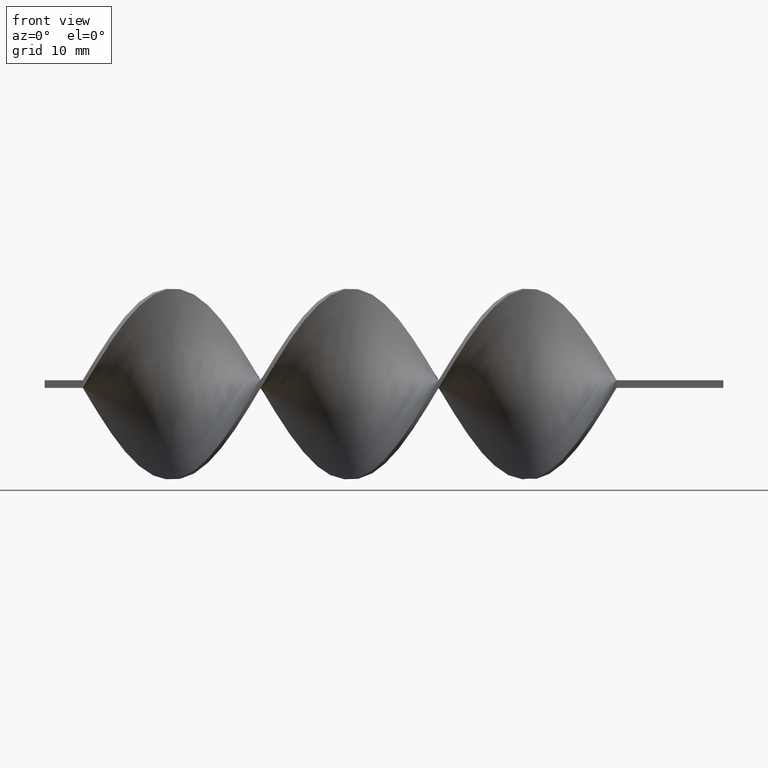
[diagram: clean part render]
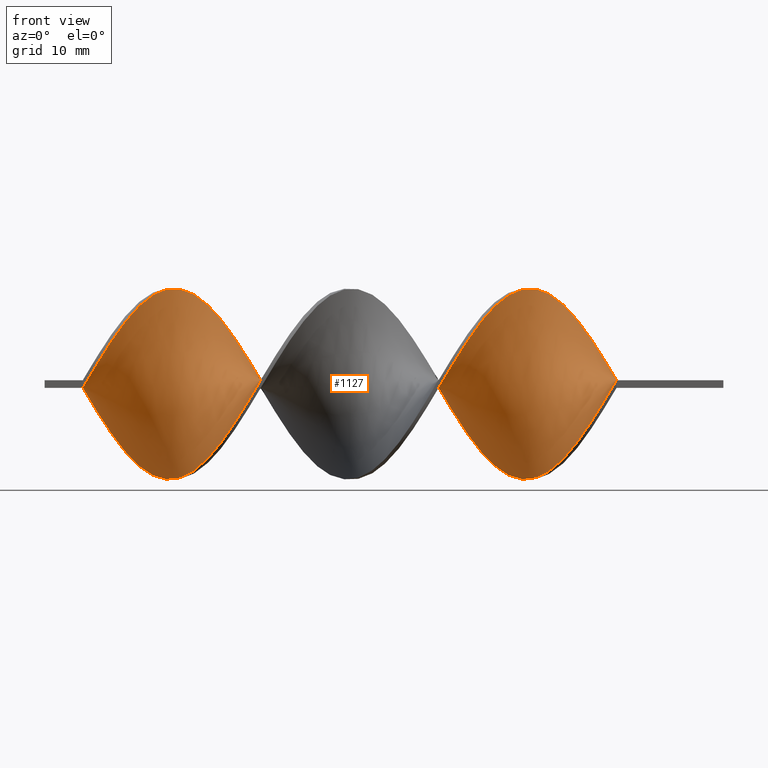
[diagram: same view with one face highlighted and labeled with its STEP entity id]
A machine part, front view. The second image highlights one B-rep face of the part: STEP entity #1127.
In plain terms, the highlighted face is a freeform B-spline surface patch.
Its self-contained STEP definition (entity closure, byte-faithful):
#8 = CARTESIAN_POINT ( 'NONE',  ( -23.87179487179487580, 2.524380470717862757, 12.34645007188563959 ) ) ;
#15 = CARTESIAN_POINT ( 'NONE',  ( -66.05128205128204399, 9.024823023018365475, 8.663288602095489566 ) ) ;
#22 = CARTESIAN_POINT ( 'NONE',  ( -78.61538461538461320, -9.687945681259160224, 7.914777853924392481 ) ) ;
#26 = CARTESIAN_POINT ( 'NONE',  ( -19.38461538461537970, -9.687945681259163777, -7.914777853924387152 ) ) ;
#27 = CARTESIAN_POINT ( 'NONE',  ( -42.71794871794871540, 9.687945681259162001, 7.914777853924385376 ) ) ;
#28 = CARTESIAN_POINT ( 'NONE',  ( -68.74358974358973740, 5.405725462660112335, 11.38356088229227048 ) ) ;
#30 = CARTESIAN_POINT ( 'NONE',  ( -69.64102564102563520, -4.900069209374406931, -11.51040059004641591 ) ) ;
#42 = CARTESIAN_POINT ( 'NONE',  ( -61.56410256410256920, 12.43928900838886875, 2.017774790278256791 ) ) ;
#53 = CARTESIAN_POINT ( 'NONE',  ( -52.58974358974358410, -5.405725462660106118, 11.38356088229227225 ) ) ;
#54 = CARTESIAN_POINT ( 'NONE',  ( -16.69230769230769340, -11.95215010832773217, -3.994174999484634281 ) ) ;
#56 = CARTESIAN_POINT ( 'NONE',  ( -24.76923076923076650, -2.003062940240569301, -12.34859258609801458 ) ) ;
#61 = CARTESIAN_POINT ( 'NONE',  ( -40.92307692307691980, -10.83583873464324299, -6.251767663373710704 ) ) ;
#63 = CARTESIAN_POINT ( 'NONE',  ( -77.71794871794872961, 7.972909339725120503, -9.759100511780301801 ) ) ;
#68 = CARTESIAN_POINT ( 'NONE',  ( -53.48717948717948900, -6.689317401192618640, 10.57133069703628614 ) ) ;
#70 = CARTESIAN_POINT ( 'NONE',  ( -63.35897435897435770, 11.59494076297487375, 4.936058634336738749 ) ) ;
#75 = CARTESIAN_POINT ( 'NONE',  ( -57.97435897435897090, 11.95215010832772684, -3.994174999484640498 ) ) ;
#78 = CARTESIAN_POINT ( 'NONE',  ( -81.30769230769233502, 11.59494076297487197, -4.936058634336743189 ) ) ;
#84 = CARTESIAN_POINT ( 'NONE',  ( -67.84615384615385381, -7.512301267086279211, -10.00326595030512777 ) ) ;
#85 = CARTESIAN_POINT ( 'NONE',  ( -33.74358974358974450, -11.30056190668700822, 5.366311637720503569 ) ) ;
#88 = CARTESIAN_POINT ( 'NONE',  ( -30.15384615384614975, 6.689317401192616863, -10.57133069703628436 ) ) ;
#93 = CARTESIAN_POINT ( 'NONE',  ( -40.02564102564102200, -11.59494076297487730, -4.936058634336734308 ) ) ;
#94 = CARTESIAN_POINT ( 'NONE',  ( -58.87179487179486870, 12.25643054996942638, -2.505974894881457526 ) ) ;
#96 = CARTESIAN_POINT ( 'NONE',  ( -26.56410256410255855, 1.010354066142507001, -12.46912926635333640 ) ) ;
#101 = CARTESIAN_POINT ( 'NONE',  ( -42.71794871794872250, -9.024823023018370804, -8.663288602095487789 ) ) ;
#109 = CARTESIAN_POINT ( 'NONE',  ( -65.15384615384614619, -10.64897370504629137, -6.738448275956367972 ) ) ;
#110 = CARTESIAN_POINT ( 'NONE',  ( -73.23076923076922640, 1.010354066142507001, -12.46912926635333640 ) ) ;
#117 = CARTESIAN_POINT ( 'NONE',  ( -34.64102564102564230, -11.95215010832773039, 3.994174999484638722 ) ) ;
#120 = CARTESIAN_POINT ( 'NONE',  ( -45.41025641025640880, 6.297684876700521350, 10.91542446871784122 ) ) ;
#124 = B_SPLINE_CURVE_WITH_KNOTS ( 'NONE', 3,
 ( #1076, #456, #1447, #320 ),
 .UNSPECIFIED., .F., .F.,
 ( 4, 4 ),
 ( 0.000000000000000000, 1.000000000000000000 ),
 .UNSPECIFIED. ) ;
#130 = CARTESIAN_POINT ( 'NONE',  ( -82.20512820512820440, -12.25643054996943171, 2.505974894881450421 ) ) ;
#133 = CARTESIAN_POINT ( 'NONE',  ( -19.38461538461538325, 9.024823023018365475, 8.663288602095489566 ) ) ;
#147 = CARTESIAN_POINT ( 'NONE',  ( -13.99999999999999467, -12.50000000000000178, 0.5000000000000000000 ) ) ;
#154 = CARTESIAN_POINT ( 'NONE',  ( -56.17948717948717530, -10.07673670631160867, 7.567476692410687100 ) ) ;
#161 = CARTESIAN_POINT ( 'NONE',  ( -48.10256410256409509, 2.003062940240569745, 12.34859258609801280 ) ) ;
#163 = CARTESIAN_POINT ( 'NONE',  ( -65.15384615384614619, 10.07673670631160512, 7.567476692410683548 ) ) ;
#168 = CARTESIAN_POINT ( 'NONE',  ( -50.79487179487178139, -2.524380470717860536, 12.34645007188564136 ) ) ;
#175 = EDGE_CURVE ( 'NONE', #1342, #534, #124, .T. ) ;
#181 = CARTESIAN_POINT ( 'NONE',  ( -59.76923076923077360, 12.56071099161113303, -1.017774790278264119 ) ) ;
#184 = FACE_OUTER_BOUND ( 'NONE', #1585, .T. ) ;
#189 = CARTESIAN_POINT ( 'NONE',  ( -53.48717948717948900, 7.512301267086271217, -10.00326595030513133 ) ) ;
#192 = CARTESIAN_POINT ( 'NONE',  ( -66.05128205128204399, 9.024823023018365475, 8.663288602095489566 ) ) ;
#197 = ORIENTED_EDGE ( 'NONE', *, *, #175, .F. ) ;
#200 = CARTESIAN_POINT ( 'NONE',  ( -66.94871794871794179, -8.726917657472039735, -9.091107431892412549 ) ) ;
#201 = CARTESIAN_POINT ( 'NONE',  ( -43.61538461538461320, -7.972909339725131161, -9.759100511780294696 ) ) ;
#205 = CARTESIAN_POINT ( 'NONE',  ( -40.92307692307691980, 11.30056190668700822, 5.366311637720500904 ) ) ;
#210 = CARTESIAN_POINT ( 'NONE',  ( -75.92307692307690559, 5.405725462660110558, -11.38356088229227048 ) ) ;
#211 = CARTESIAN_POINT ( 'NONE',  ( -22.07692307692308376, 5.405725462660113223, 11.38356088229226870 ) ) ;
#216 = CARTESIAN_POINT ( 'NONE',  ( -17.58974358974358765, 10.83583873464323943, 6.251767663373711592 ) ) ;
#218 = CARTESIAN_POINT ( 'NONE',  ( -83.10256410256410220, 12.43928900838886875, -2.017774790278262564 ) ) ;
#225 = CARTESIAN_POINT ( 'NONE',  ( -25.66666666666666785, -0.5036723384328426478, 12.59180846082103855 ) ) ;
#232 = CARTESIAN_POINT ( 'NONE',  ( -33.74358974358974450, -11.30056190668700822, 5.366311637720503569 ) ) ;
#234 = CARTESIAN_POINT ( 'NONE',  ( -79.51282051282051100, -10.64897370504628960, 6.738448275956369748 ) ) ;
#238 = CARTESIAN_POINT ( 'NONE',  ( -26.56410256410256210, -2.003062940240564860, 12.34859258609801458 ) ) ;
#248 = CARTESIAN_POINT ( 'NONE',  ( -76.82051282051281760, -7.512301267086276546, 10.00326595030512955 ) ) ;
#259 = CARTESIAN_POINT ( 'NONE',  ( -44.51282051282050389, 7.512301267086275658, 10.00326595030512777 ) ) ;
#263 = CARTESIAN_POINT ( 'NONE',  ( -73.23076923076924061, -2.003062940240564860, 12.34859258609801458 ) ) ;
#271 = CARTESIAN_POINT ( 'NONE',  ( -20.28205128205128105, -8.726917657472039735, -9.091107431892410773 ) ) ;
#276 =( BOUNDED_CURVE ( )  B_SPLINE_CURVE ( 2, ( #989, #968, #720, #474, #216, #1352, #1113, #1465, #337, #624, #728, #8, #1217, #225, #238, #1606, #1234, #492, #1483, #977, #1361, #883, #232, #117, #1498, #1615, #890, #1492, #860, #93, #374, #594, #101, #1091, #603, #656, #645, #1143, #1012, #1128, #400, #1262, #794, #1023, #1517, #1008, #1159, #392, #384, #672, #522, #787, #1506, #42, #1280, #543, #538, #163, #15, #1153, #528, #28, #1037, #899, #514, #1535, #263, #915, #924, #416, #248, #1257, #22, #1270, #1392, #641, #130, #764, #780 ),
 .UNSPECIFIED., .F., .T. ) 
 B_SPLINE_CURVE_WITH_KNOTS ( ( 3, 2, 2, 2, 2, 2, 2, 2, 2, 2, 2, 2, 2, 2, 2, 2, 2, 2, 2, 2, 2, 2, 2, 2, 2, 2, 2, 2, 2, 2, 2, 2, 2, 2, 2, 2, 2, 2, 2, 3 ),
 ( 0.000000000000000000, 0.01923076923076923184, 0.03846153846153846367, 0.05769230769230768857, 0.07692307692307692735, 0.09615384615384615918, 0.1153846153846153771, 0.1346153846153846090, 0.1538461538461538547, 0.1730769230769230449, 0.1923076923076923184, 0.2115384615384615363, 0.2307692307692307543, 0.2500000000000000000, 0.2692307692307692180, 0.2884615384615384359, 0.3076923076923077094, 0.3269230769230769273, 0.3461538461538460898, 0.3653846153846153633, 0.3846153846153846367, 0.4038461538461539102, 0.4230769230769230727, 0.4423076923076922906, 0.4615384615384615086, 0.4807692307692307820, 0.5000000000000000000, 0.5192307692307692735, 0.5384615384615384359, 0.5576923076923077094, 0.5769230769230768718, 0.5961538461538461453, 0.6153846153846154188, 0.6346153846153845812, 0.6538461538461538547, 0.6730769230769230171, 0.6923076923076921796, 0.7115384615384615641, 0.7307692307692307265, 0.7500000000000000000 ),
 .UNSPECIFIED. ) 
 CURVE ( )  GEOMETRIC_REPRESENTATION_ITEM ( )  RATIONAL_B_SPLINE_CURVE ( ( 1.000000000000000000, 0.9927088740980539727, 1.000000000000000000, 0.9927088740980539727, 1.000000000000000000, 0.9927088740980539727, 1.000000000000000000, 0.9927088740980539727, 1.000000000000000000, 0.9927088740980539727, 1.000000000000000000, 0.9927088740980539727, 1.000000000000000000, 0.9927088740980539727, 1.000000000000000000, 0.9927088740980539727, 1.000000000000000000, 0.9927088740980539727, 1.000000000000000000, 0.9927088740980539727, 1.000000000000000000, 0.9927088740980539727, 1.000000000000000000, 0.9927088740980539727, 1.000000000000000000, 0.9927088740980539727, 1.000000000000000000, 0.9927088740980539727, 1.000000000000000000, 0.9927088740980539727, 1.000000000000000000, 0.9927088740980539727, 1.000000000000000000, 0.9927088740980539727, 1.000000000000000000, 0.9927088740980539727, 1.000000000000000000, 0.9927088740980539727, 1.000000000000000000, 0.9927088740980539727, 1.000000000000000000, 0.9927088740980539727, 1.000000000000000000, 0.9927088740980539727, 1.000000000000000000, 0.9927088740980539727, 1.000000000000000000, 0.9927088740980539727, 1.000000000000000000, 0.9927088740980539727, 1.000000000000000000, 0.9927088740980539727, 1.000000000000000000, 0.9927088740980539727, 1.000000000000000000, 0.9927088740980539727, 1.000000000000000000, 0.9927088740980539727, 1.000000000000000000, 0.9927088740980539727, 1.000000000000000000, 0.9927088740980539727, 1.000000000000000000, 0.9927088740980539727, 1.000000000000000000, 0.9927088740980539727, 1.000000000000000000, 0.9927088740980539727, 1.000000000000000000, 0.9927088740980539727, 1.000000000000000000, 0.9927088740980539727, 1.000000000000000000, 0.9927088740980539727, 1.000000000000000000, 0.9927088740980539727, 1.000000000000000000, 0.9927088740980539727, 1.000000000000000000 ) ) 
 REPRESENTATION_ITEM ( '' )  );
#282 = CARTESIAN_POINT ( 'NONE',  ( -45.41025641025640880, 6.297684876700521350, 10.91542446871784122 ) ) ;
#288 = ORIENTED_EDGE ( 'NONE', *, *, #1401, .F. ) ;
#290 = CARTESIAN_POINT ( 'NONE',  ( -26.56410256410255855, 1.010354066142507001, -12.46912926635333640 ) ) ;
#295 = CARTESIAN_POINT ( 'NONE',  ( -37.33333333333332860, -12.50000000000000178, -0.4999999999999985012 ) ) ;
#297 = CARTESIAN_POINT ( 'NONE',  ( -27.46153846153845990, 2.524380470717861424, -12.34645007188564136 ) ) ;
#301 = CARTESIAN_POINT ( 'NONE',  ( -62.46153846153845990, -12.25643054996943171, -2.505974894881445980 ) ) ;
#302 = CARTESIAN_POINT ( 'NONE',  ( -54.38461538461538680, 8.726917657472025525, -9.091107431892417878 ) ) ;
#313 = CARTESIAN_POINT ( 'NONE',  ( -31.05128205128205821, -8.726917657472034406, 9.091107431892414326 ) ) ;
#320 = CARTESIAN_POINT ( 'NONE',  ( -84.00000000000000000, -12.50000000000000178, -0.4999999999999985012 ) ) ;
#321 = CARTESIAN_POINT ( 'NONE',  ( -73.23076923076924061, -2.003062940240564860, 12.34859258609801458 ) ) ;
#329 = CARTESIAN_POINT ( 'NONE',  ( -69.64102564102563520, -4.900069209374406931, -11.51040059004641591 ) ) ;
#330 = CARTESIAN_POINT ( 'NONE',  ( -32.84615384615384670, -10.64897370504628960, 6.738448275956369748 ) ) ;
#337 = CARTESIAN_POINT ( 'NONE',  ( -21.17948717948717885, 6.689317401192619528, 10.57133069703628259 ) ) ;
#342 =( BOUNDED_SURFACE ( )  B_SPLINE_SURFACE ( 1, 2, ( 
 ( #580, #459, #841, #54, #559, #1588, #1505, #271, #414, #1531, #1403, #506, #1510, #912, #290, #297, #1170, #560, #550, #1550, #1058, #814, #1406, #1559, #1567, #1544, #1293, #990, #1144, #997, #354, #655, #27, #399, #913, #282, #664, #1034, #161, #668, #791, #168, #1163, #548, #894, #496, #546, #154, #661, #356, #788, #1616, #606, #1493, #1224, #500, #891, #109, #1607, #800, #521, #1602, #30, #1024, #487, #781, #979, #1519, #1227, #1534, #1542, #63, #1068, #707, #1327, #78, #1203, #461, #1451 ),
 ( #491, #958, #718, #951, #1518, #401, #133, #1298, #810, #211, #949, #693, #1323, #1439, #956, #1209, #839, #1418, #446, #313, #563, #330, #85, #825, #1189, #701, #295, #1200, #1175, #932, #61, #436, #573, #201, #1056, #1556, #713, #941, #1456, #1428, #1449, #585, #722, #1085, #189, #302, #829, #1563, #1335, #75, #94, #181, #704, #596, #1310, #70, #579, #1581, #192, #1181, #468, #1077, #1066, #1316, #1573, #458, #321, #962, #848, #1093, #1593, #1226, #486, #234, #376, #1484, #494, #476, #1101 ) ),
 .UNSPECIFIED., .F., .F., .F. ) 
 B_SPLINE_SURFACE_WITH_KNOTS ( ( 2, 2 ),
 ( 3, 2, 2, 2, 2, 2, 2, 2, 2, 2, 2, 2, 2, 2, 2, 2, 2, 2, 2, 2, 2, 2, 2, 2, 2, 2, 2, 2, 2, 2, 2, 2, 2, 2, 2, 2, 2, 2, 2, 3 ),
 ( 0.000000000000000000, 1.000000000000000000 ),
 ( 0.000000000000000000, 0.01923076923076923184, 0.03846153846153846367, 0.05769230769230769551, 0.07692307692307692735, 0.09615384615384615918, 0.1153846153846153910, 0.1346153846153846090, 0.1538461538461538547, 0.1730769230769230727, 0.1923076923076923184, 0.2115384615384615363, 0.2307692307692307820, 0.2500000000000000000, 0.2692307692307692180, 0.2884615384615384359, 0.3076923076923077094, 0.3269230769230769273, 0.3461538461538461453, 0.3653846153846153633, 0.3846153846153846367, 0.4038461538461538547, 0.4230769230769230727, 0.4423076923076922906, 0.4615384615384615641, 0.4807692307692307820, 0.5000000000000000000, 0.5192307692307692735, 0.5384615384615384359, 0.5576923076923077094, 0.5769230769230768718, 0.5961538461538461453, 0.6153846153846154188, 0.6346153846153845812, 0.6538461538461538547, 0.6730769230769231282, 0.6923076923076922906, 0.7115384615384615641, 0.7307692307692307265, 0.7500000000000000000 ),
 .UNSPECIFIED. ) 
 GEOMETRIC_REPRESENTATION_ITEM ( )  RATIONAL_B_SPLINE_SURFACE ( (
 ( 1.000000000000000000, 0.9927088740980539727, 1.000000000000000000, 0.9927088740980539727, 1.000000000000000000, 0.9927088740980539727, 1.000000000000000000, 0.9927088740980539727, 1.000000000000000000, 0.9927088740980539727, 1.000000000000000000, 0.9927088740980539727, 1.000000000000000000, 0.9927088740980539727, 1.000000000000000000, 0.9927088740980539727, 1.000000000000000000, 0.9927088740980539727, 1.000000000000000000, 0.9927088740980539727, 1.000000000000000000, 0.9927088740980539727, 1.000000000000000000, 0.9927088740980539727, 1.000000000000000000, 0.9927088740980539727, 1.000000000000000000, 0.9927088740980539727, 1.000000000000000000, 0.9927088740980539727, 1.000000000000000000, 0.9927088740980539727, 1.000000000000000000, 0.9927088740980539727, 1.000000000000000000, 0.9927088740980539727, 1.000000000000000000, 0.9927088740980539727, 1.000000000000000000, 0.9927088740980539727, 1.000000000000000000, 0.9927088740980539727, 1.000000000000000000, 0.9927088740980539727, 1.000000000000000000, 0.9927088740980539727, 1.000000000000000000, 0.9927088740980539727, 1.000000000000000000, 0.9927088740980539727, 1.000000000000000000, 0.9927088740980539727, 1.000000000000000000, 0.9927088740980539727, 1.000000000000000000, 0.9927088740980539727, 1.000000000000000000, 0.9927088740980539727, 1.000000000000000000, 0.9927088740980539727, 1.000000000000000000, 0.9927088740980539727, 1.000000000000000000, 0.9927088740980539727, 1.000000000000000000, 0.9927088740980539727, 1.000000000000000000, 0.9927088740980539727, 1.000000000000000000, 0.9927088740980539727, 1.000000000000000000, 0.9927088740980539727, 1.000000000000000000, 0.9927088740980539727, 1.000000000000000000, 0.9927088740980539727, 1.000000000000000000, 0.9927088740980539727, 1.000000000000000000),
 ( 1.000000000000000000, 0.9927088740980539727, 1.000000000000000000, 0.9927088740980539727, 1.000000000000000000, 0.9927088740980539727, 1.000000000000000000, 0.9927088740980539727, 1.000000000000000000, 0.9927088740980539727, 1.000000000000000000, 0.9927088740980539727, 1.000000000000000000, 0.9927088740980539727, 1.000000000000000000, 0.9927088740980539727, 1.000000000000000000, 0.9927088740980539727, 1.000000000000000000, 0.9927088740980539727, 1.000000000000000000, 0.9927088740980539727, 1.000000000000000000, 0.9927088740980539727, 1.000000000000000000, 0.9927088740980539727, 1.000000000000000000, 0.9927088740980539727, 1.000000000000000000, 0.9927088740980539727, 1.000000000000000000, 0.9927088740980539727, 1.000000000000000000, 0.9927088740980539727, 1.000000000000000000, 0.9927088740980539727, 1.000000000000000000, 0.9927088740980539727, 1.000000000000000000, 0.9927088740980539727, 1.000000000000000000, 0.9927088740980539727, 1.000000000000000000, 0.9927088740980539727, 1.000000000000000000, 0.9927088740980539727, 1.000000000000000000, 0.9927088740980539727, 1.000000000000000000, 0.9927088740980539727, 1.000000000000000000, 0.9927088740980539727, 1.000000000000000000, 0.9927088740980539727, 1.000000000000000000, 0.9927088740980539727, 1.000000000000000000, 0.9927088740980539727, 1.000000000000000000, 0.9927088740980539727, 1.000000000000000000, 0.9927088740980539727, 1.000000000000000000, 0.9927088740980539727, 1.000000000000000000, 0.9927088740980539727, 1.000000000000000000, 0.9927088740980539727, 1.000000000000000000, 0.9927088740980539727, 1.000000000000000000, 0.9927088740980539727, 1.000000000000000000, 0.9927088740980539727, 1.000000000000000000, 0.9927088740980539727, 1.000000000000000000, 0.9927088740980539727, 1.000000000000000000) ) ) 
 REPRESENTATION_ITEM ( '' )  SURFACE ( )  );
#347 = CARTESIAN_POINT ( 'NONE',  ( -13.99999999999999467, -12.50000000000000178, 0.5000000000000000000 ) ) ;
#354 = CARTESIAN_POINT ( 'NONE',  ( -40.92307692307691980, 11.30056190668700822, 5.366311637720500904 ) ) ;
#355 = CARTESIAN_POINT ( 'NONE',  ( -84.00000000000000000, 12.49999999999999822, -0.5000000000000015543 ) ) ;
#356 = CARTESIAN_POINT ( 'NONE',  ( -57.97435897435897090, -11.59494076297487553, 4.936058634336744966 ) ) ;
#372 = ORIENTED_EDGE ( 'NONE', *, *, #440, .F. ) ;
#374 = CARTESIAN_POINT ( 'NONE',  ( -40.92307692307691980, -10.83583873464324299, -6.251767663373710704 ) ) ;
#376 = CARTESIAN_POINT ( 'NONE',  ( -80.41025641025640880, -11.30056190668700822, 5.366311637720503569 ) ) ;
#384 = CARTESIAN_POINT ( 'NONE',  ( -57.07692307692307310, 11.30056190668700289, -5.366311637720509786 ) ) ;
#388 = CARTESIAN_POINT ( 'NONE',  ( -43.61538461538461320, 8.726917657472037959, 9.091107431892408997 ) ) ;
#392 = CARTESIAN_POINT ( 'NONE',  ( -56.17948717948717530, 10.64897370504628604, -6.738448275956370637 ) ) ;
#398 = CARTESIAN_POINT ( 'NONE',  ( -21.17948717948717530, -7.512301267086279211, -10.00326595030512777 ) ) ;
#399 = CARTESIAN_POINT ( 'NONE',  ( -43.61538461538461320, 8.726917657472037959, 9.091107431892407220 ) ) ;
#400 = CARTESIAN_POINT ( 'NONE',  ( -49.89743589743589069, 2.003062940240554202, -12.34859258609801635 ) ) ;
#401 = CARTESIAN_POINT ( 'NONE',  ( -18.48717948717948545, 10.07673670631160689, 7.567476692410683548 ) ) ;
#414 = CARTESIAN_POINT ( 'NONE',  ( -21.17948717948717530, -7.512301267086279211, -10.00326595030512777 ) ) ;
#416 = CARTESIAN_POINT ( 'NONE',  ( -75.92307692307691980, -6.297684876700517798, 10.91542446871784655 ) ) ;
#420 = CARTESIAN_POINT ( 'NONE',  ( -64.25641025641024839, -11.30056190668700999, -5.366311637720501793 ) ) ;
#435 = CARTESIAN_POINT ( 'NONE',  ( -59.76923076923076650, -12.43928900838887230, 2.017774790278263897 ) ) ;
#436 = CARTESIAN_POINT ( 'NONE',  ( -41.82051282051281760, -10.07673670631161222, -7.567476692410682659 ) ) ;
#440 = EDGE_CURVE ( 'NONE', #1458, #1342, #1468, .T. ) ;
#446 = CARTESIAN_POINT ( 'NONE',  ( -30.15384615384615330, -7.512301267086276546, 10.00326595030512955 ) ) ;
#456 = CARTESIAN_POINT ( 'NONE',  ( -84.00000000000000000, 4.166666666666666075, -0.5000000000000005551 ) ) ;
#458 = CARTESIAN_POINT ( 'NONE',  ( -72.33333333333332860, -0.5036723384328426478, 12.59180846082103855 ) ) ;
#459 = CARTESIAN_POINT ( 'NONE',  ( -14.89743589743589247, -12.56071099161113658, -1.017774790278256791 ) ) ;
#461 = CARTESIAN_POINT ( 'NONE',  ( -83.10256410256410220, 12.43928900838886875, -2.017774790278262564 ) ) ;
#468 = CARTESIAN_POINT ( 'NONE',  ( -67.84615384615385381, 6.689317401192619528, 10.57133069703628259 ) ) ;
#474 = CARTESIAN_POINT ( 'NONE',  ( -16.69230769230769340, 11.59494076297487375, 4.936058634336738749 ) ) ;
#475 = CARTESIAN_POINT ( 'NONE',  ( -75.02564102564102200, 3.965052966688984437, -11.86500547708895326 ) ) ;
#476 = CARTESIAN_POINT ( 'NONE',  ( -83.10256410256410220, -12.56071099161113658, 1.017774790278262564 ) ) ;
#486 = CARTESIAN_POINT ( 'NONE',  ( -78.61538461538461320, -9.687945681259160224, 7.914777853924392481 ) ) ;
#487 = CARTESIAN_POINT ( 'NONE',  ( -71.43589743589743080, -2.003062940240569301, -12.34859258609801458 ) ) ;
#491 = CARTESIAN_POINT ( 'NONE',  ( -13.99999999999999822, 12.49999999999999822, 0.5000000000000000000 ) ) ;
#492 = CARTESIAN_POINT ( 'NONE',  ( -29.25641025641025905, -6.297684876700517798, 10.91542446871784655 ) ) ;
#494 = CARTESIAN_POINT ( 'NONE',  ( -82.20512820512820440, -12.25643054996943171, 2.505974894881450421 ) ) ;
#495 = CARTESIAN_POINT ( 'NONE',  ( -22.97435897435896734, -4.900069209374406931, -11.51040059004641591 ) ) ;
#496 = CARTESIAN_POINT ( 'NONE',  ( -54.38461538461537970, -7.972909339725118727, 9.759100511780305354 ) ) ;
#500 = CARTESIAN_POINT ( 'NONE',  ( -63.35897435897434349, -11.95215010832773217, -3.994174999484634281 ) ) ;
#506 = CARTESIAN_POINT ( 'NONE',  ( -23.87179487179487225, -3.502453542048291624, -12.10537671137499238 ) ) ;
#514 = CARTESIAN_POINT ( 'NONE',  ( -71.43589743589743080, 1.010354066142511442, 12.46912926635333640 ) ) ;
#521 = CARTESIAN_POINT ( 'NONE',  ( -67.84615384615385381, -7.512301267086279211, -10.00326595030512777 ) ) ;
#522 = CARTESIAN_POINT ( 'NONE',  ( -58.87179487179486870, 12.25643054996942638, -2.505974894881457526 ) ) ;
#527 = CARTESIAN_POINT ( 'NONE',  ( -20.28205128205128105, -8.726917657472039735, -9.091107431892412549 ) ) ;
#528 = CARTESIAN_POINT ( 'NONE',  ( -67.84615384615385381, 6.689317401192619528, 10.57133069703628259 ) ) ;
#534 = VERTEX_POINT ( 'NONE', #826 ) ;
#537 = CARTESIAN_POINT ( 'NONE',  ( -14.89743589743589247, -12.56071099161113480, -1.017774790278256569 ) ) ;
#538 = CARTESIAN_POINT ( 'NONE',  ( -64.25641025641024839, 10.83583873464323943, 6.251767663373711592 ) ) ;
#543 = CARTESIAN_POINT ( 'NONE',  ( -63.35897435897436480, 11.59494076297487375, 4.936058634336738749 ) ) ;
#546 = CARTESIAN_POINT ( 'NONE',  ( -55.28205128205128460, -9.024823023018361923, 8.663288602095494895 ) ) ;
#548 = CARTESIAN_POINT ( 'NONE',  ( -52.58974358974357699, -5.405725462660107006, 11.38356088229227048 ) ) ;
#550 = CARTESIAN_POINT ( 'NONE',  ( -30.15384615384614975, 6.689317401192616863, -10.57133069703628436 ) ) ;
#558 = CARTESIAN_POINT ( 'NONE',  ( -55.28205128205128460, -9.024823023018361923, 8.663288602095494895 ) ) ;
#559 = CARTESIAN_POINT ( 'NONE',  ( -17.58974358974358410, -11.30056190668700999, -5.366311637720501793 ) ) ;
#560 = CARTESIAN_POINT ( 'NONE',  ( -29.25641025641025550, 5.405725462660111447, -11.38356088229226870 ) ) ;
#563 = CARTESIAN_POINT ( 'NONE',  ( -31.94871794871794535, -9.687945681259160224, 7.914777853924392481 ) ) ;
#572 = CARTESIAN_POINT ( 'NONE',  ( -47.20512820512820440, 3.502453542048287183, 12.10537671137499238 ) ) ;
#573 = CARTESIAN_POINT ( 'NONE',  ( -42.71794871794872250, -9.024823023018370804, -8.663288602095487789 ) ) ;
#579 = CARTESIAN_POINT ( 'NONE',  ( -64.25641025641024839, 10.83583873464323943, 6.251767663373711592 ) ) ;
#580 = CARTESIAN_POINT ( 'NONE',  ( -13.99999999999999467, -12.50000000000000178, 0.5000000000000000000 ) ) ;
#585 = CARTESIAN_POINT ( 'NONE',  ( -50.79487179487178850, 3.502453542048282742, -12.10537671137499238 ) ) ;
#587 = CARTESIAN_POINT ( 'NONE',  ( -37.33333333333332860, 12.49999999999999822, -0.5000000000000015543 ) ) ;
#594 = CARTESIAN_POINT ( 'NONE',  ( -41.82051282051281760, -10.07673670631161045, -7.567476692410682659 ) ) ;
#595 = CARTESIAN_POINT ( 'NONE',  ( -78.61538461538461320, 9.024823023018361923, -8.663288602095494895 ) ) ;
#596 = CARTESIAN_POINT ( 'NONE',  ( -61.56410256410256920, 12.43928900838886875, 2.017774790278256791 ) ) ;
#599 = CARTESIAN_POINT ( 'NONE',  ( -33.74358974358973740, 10.83583873464323766, -6.251767663373713368 ) ) ;
#603 = CARTESIAN_POINT ( 'NONE',  ( -44.51282051282051100, -6.689317401192623080, -10.57133069703628259 ) ) ;
#606 = CARTESIAN_POINT ( 'NONE',  ( -60.66666666666665719, -12.50000000000000178, 0.5000000000000000000 ) ) ;
#607 = CARTESIAN_POINT ( 'NONE',  ( -79.51282051282051100, 10.07673670631160334, -7.567476692410685324 ) ) ;
#613 = CARTESIAN_POINT ( 'NONE',  ( -23.87179487179487225, -3.502453542048291624, -12.10537671137499238 ) ) ;
#620 = CARTESIAN_POINT ( 'NONE',  ( -31.05128205128205110, 7.972909339725121391, -9.759100511780301801 ) ) ;
#624 = CARTESIAN_POINT ( 'NONE',  ( -22.07692307692308020, 5.405725462660112335, 11.38356088229227048 ) ) ;
#632 = CARTESIAN_POINT ( 'NONE',  ( -13.99999999999999822, 12.49999999999999822, 0.5000000000000000000 ) ) ;
#641 = CARTESIAN_POINT ( 'NONE',  ( -81.30769230769232081, -11.95215010832773039, 3.994174999484638722 ) ) ;
#644 = CARTESIAN_POINT ( 'NONE',  ( -15.79487179487178850, -12.25643054996943171, -2.505974894881445980 ) ) ;
#645 = CARTESIAN_POINT ( 'NONE',  ( -46.30769230769230660, -3.965052966688992875, -11.86500547708895148 ) ) ;
#655 = CARTESIAN_POINT ( 'NONE',  ( -41.82051282051281760, 10.64897370504628960, 6.738448275956367084 ) ) ;
#656 = CARTESIAN_POINT ( 'NONE',  ( -45.41025641025640880, -5.405725462660122105, -11.38356088229226515 ) ) ;
#661 = CARTESIAN_POINT ( 'NONE',  ( -57.07692307692306599, -10.83583873464323766, 6.251767663373719586 ) ) ;
#664 = CARTESIAN_POINT ( 'NONE',  ( -46.30769230769229949, 4.900069209374405155, 11.51040059004641591 ) ) ;
#668 = CARTESIAN_POINT ( 'NONE',  ( -49.00000000000000711, 0.5036723384328417596, 12.59180846082103855 ) ) ;
#672 = CARTESIAN_POINT ( 'NONE',  ( -57.97435897435897090, 11.95215010832772684, -3.994174999484640498 ) ) ;
#693 = CARTESIAN_POINT ( 'NONE',  ( -23.87179487179487580, 2.524380470717862757, 12.34645007188564136 ) ) ;
#700 = CARTESIAN_POINT ( 'NONE',  ( -56.17948717948717530, -10.07673670631160689, 7.567476692410687100 ) ) ;
#701 = CARTESIAN_POINT ( 'NONE',  ( -36.43589743589743790, -12.56071099161113658, 1.017774790278262564 ) ) ;
#704 = CARTESIAN_POINT ( 'NONE',  ( -60.66666666666666430, 12.49999999999999822, 0.5000000000000000000 ) ) ;
#707 = CARTESIAN_POINT ( 'NONE',  ( -79.51282051282051100, 10.07673670631160512, -7.567476692410685324 ) ) ;
#713 = CARTESIAN_POINT ( 'NONE',  ( -46.30769230769230660, -3.965052966688992875, -11.86500547708895148 ) ) ;
#715 = CARTESIAN_POINT ( 'NONE',  ( -41.82051282051281760, 10.64897370504628960, 6.738448275956366196 ) ) ;
#718 = CARTESIAN_POINT ( 'NONE',  ( -15.79487179487179205, 12.01711488568186859, 3.476916712307497548 ) ) ;
#720 = CARTESIAN_POINT ( 'NONE',  ( -15.79487179487179205, 12.01711488568186859, 3.476916712307497548 ) ) ;
#721 = CARTESIAN_POINT ( 'NONE',  ( -76.82051282051281760, 6.689317401192616863, -10.57133069703628436 ) ) ;
#722 = CARTESIAN_POINT ( 'NONE',  ( -51.69230769230769340, 4.900069209374400714, -11.51040059004641769 ) ) ;
#728 = CARTESIAN_POINT ( 'NONE',  ( -22.97435897435897090, 3.965052966688987546, 11.86500547708895148 ) ) ;
#732 = CARTESIAN_POINT ( 'NONE',  ( -22.07692307692307310, -6.297684876700517798, -10.91542446871784655 ) ) ;
#739 = CARTESIAN_POINT ( 'NONE',  ( -70.53846153846153300, -3.502453542048291624, -12.10537671137499238 ) ) ;
#764 = CARTESIAN_POINT ( 'NONE',  ( -83.10256410256410220, -12.56071099161113480, 1.017774790278262564 ) ) ;
#766 = CARTESIAN_POINT ( 'NONE',  ( -46.30769230769229949, 4.900069209374405155, 11.51040059004641591 ) ) ;
#780 = CARTESIAN_POINT ( 'NONE',  ( -84.00000000000000000, -12.50000000000000178, -0.4999999999999985012 ) ) ;
#781 = CARTESIAN_POINT ( 'NONE',  ( -72.33333333333332860, -0.5036723384328442021, -12.59180846082103855 ) ) ;
#787 = CARTESIAN_POINT ( 'NONE',  ( -59.76923076923076650, 12.56071099161113125, -1.017774790278263897 ) ) ;
#788 = CARTESIAN_POINT ( 'NONE',  ( -58.87179487179486159, -12.01711488568187036, 3.476916712307509094 ) ) ;
#791 = CARTESIAN_POINT ( 'NONE',  ( -49.89743589743589069, -1.010354066142503893, 12.46912926635333818 ) ) ;
#794 = CARTESIAN_POINT ( 'NONE',  ( -51.69230769230769340, 4.900069209374400714, -11.51040059004641769 ) ) ;
#800 = CARTESIAN_POINT ( 'NONE',  ( -66.94871794871792758, -8.726917657472039735, -9.091107431892410773 ) ) ;
#810 = CARTESIAN_POINT ( 'NONE',  ( -21.17948717948717885, 6.689317401192619528, 10.57133069703628259 ) ) ;
#814 = CARTESIAN_POINT ( 'NONE',  ( -32.84615384615384670, 10.07673670631160512, -7.567476692410685324 ) ) ;
#825 = CARTESIAN_POINT ( 'NONE',  ( -34.64102564102564230, -11.95215010832773039, 3.994174999484638722 ) ) ;
#826 = CARTESIAN_POINT ( 'NONE',  ( -84.00000000000000000, -12.50000000000000178, -0.4999999999999985012 ) ) ;
#829 = CARTESIAN_POINT ( 'NONE',  ( -55.28205128205128460, 9.687945681259156672, -7.914777853924392481 ) ) ;
#839 = CARTESIAN_POINT ( 'NONE',  ( -28.35897435897435770, -4.900069209374403378, 11.51040059004641769 ) ) ;
#841 = CARTESIAN_POINT ( 'NONE',  ( -15.79487179487178850, -12.25643054996943171, -2.505974894881445980 ) ) ;
#847 = CARTESIAN_POINT ( 'NONE',  ( -72.33333333333332860, -0.5036723384328442021, -12.59180846082103855 ) ) ;
#848 = CARTESIAN_POINT ( 'NONE',  ( -75.02564102564102200, -4.900069209374403378, 11.51040059004641769 ) ) ;
#860 = CARTESIAN_POINT ( 'NONE',  ( -39.12820512820512420, -12.01711488568187569, -3.476916712307494439 ) ) ;
#861 = CARTESIAN_POINT ( 'NONE',  ( -80.41025641025640880, 10.83583873464323766, -6.251767663373713368 ) ) ;
#877 = CARTESIAN_POINT ( 'NONE',  ( -36.43589743589743080, 12.43928900838886875, -2.017774790278262564 ) ) ;
#883 = CARTESIAN_POINT ( 'NONE',  ( -32.84615384615384670, -10.64897370504628960, 6.738448275956368860 ) ) ;
#890 = CARTESIAN_POINT ( 'NONE',  ( -37.33333333333332860, -12.50000000000000178, -0.4999999999999985012 ) ) ;
#891 = CARTESIAN_POINT ( 'NONE',  ( -64.25641025641024839, -11.30056190668700999, -5.366311637720501793 ) ) ;
#894 = CARTESIAN_POINT ( 'NONE',  ( -53.48717948717948900, -6.689317401192618640, 10.57133069703628614 ) ) ;
#899 = CARTESIAN_POINT ( 'NONE',  ( -70.53846153846153300, 2.524380470717862757, 12.34645007188563959 ) ) ;
#905 = CARTESIAN_POINT ( 'NONE',  ( -17.58974358974358410, -11.30056190668700999, -5.366311637720501793 ) ) ;
#912 = CARTESIAN_POINT ( 'NONE',  ( -25.66666666666666785, -0.5036723384328442021, -12.59180846082103855 ) ) ;
#913 = CARTESIAN_POINT ( 'NONE',  ( -44.51282051282050389, 7.512301267086275658, 10.00326595030512777 ) ) ;
#915 = CARTESIAN_POINT ( 'NONE',  ( -74.12820512820510999, -3.502453542048290291, 12.10537671137499238 ) ) ;
#924 = CARTESIAN_POINT ( 'NONE',  ( -75.02564102564102200, -4.900069209374403378, 11.51040059004641769 ) ) ;
#932 = CARTESIAN_POINT ( 'NONE',  ( -40.02564102564102200, -11.59494076297487730, -4.936058634336734308 ) ) ;
#934 = CARTESIAN_POINT ( 'NONE',  ( -39.12820512820512420, 12.25643054996942816, 2.505974894881441539 ) ) ;
#940 = CARTESIAN_POINT ( 'NONE',  ( -60.66666666666665719, -12.50000000000000178, 0.5000000000000000000 ) ) ;
#941 = CARTESIAN_POINT ( 'NONE',  ( -47.20512820512820440, -2.524380470717865421, -12.34645007188564136 ) ) ;
#949 = CARTESIAN_POINT ( 'NONE',  ( -22.97435897435897090, 3.965052966688987546, 11.86500547708895148 ) ) ;
#951 = CARTESIAN_POINT ( 'NONE',  ( -16.69230769230769695, 11.59494076297487375, 4.936058634336738749 ) ) ;
#956 = CARTESIAN_POINT ( 'NONE',  ( -26.56410256410256210, -2.003062940240564860, 12.34859258609801458 ) ) ;
#958 = CARTESIAN_POINT ( 'NONE',  ( -14.89743589743589602, 12.43928900838886875, 2.017774790278256791 ) ) ;
#961 = CARTESIAN_POINT ( 'NONE',  ( -68.74358974358973740, -6.297684876700517798, -10.91542446871784655 ) ) ;
#962 = CARTESIAN_POINT ( 'NONE',  ( -74.12820512820512420, -3.502453542048290291, 12.10537671137499238 ) ) ;
#968 = CARTESIAN_POINT ( 'NONE',  ( -14.89743589743589602, 12.43928900838886875, 2.017774790278256791 ) ) ;
#977 = CARTESIAN_POINT ( 'NONE',  ( -31.05128205128205465, -8.726917657472034406, 9.091107431892416102 ) ) ;
#979 = CARTESIAN_POINT ( 'NONE',  ( -73.23076923076922640, 1.010354066142507001, -12.46912926635333640 ) ) ;
#988 = CARTESIAN_POINT ( 'NONE',  ( -35.53846153846153300, 12.01711488568186859, -3.476916712307501989 ) ) ;
#989 = CARTESIAN_POINT ( 'NONE',  ( -13.99999999999999822, 12.49999999999999822, 0.5000000000000000000 ) ) ;
#990 = CARTESIAN_POINT ( 'NONE',  ( -38.23076923076921929, 12.56071099161113303, 1.017774790278253905 ) ) ;
#997 = CARTESIAN_POINT ( 'NONE',  ( -40.02564102564101489, 11.95215010832772862, 3.994174999484630284 ) ) ;
#998 = CARTESIAN_POINT ( 'NONE',  ( -13.99999999999999822, 12.49999999999999822, 0.5000000000000000000 ) ) ;
#1008 = CARTESIAN_POINT ( 'NONE',  ( -54.38461538461538680, 8.726917657472025525, -9.091107431892417878 ) ) ;
#1012 = CARTESIAN_POINT ( 'NONE',  ( -48.10256410256410220, -1.010354066142519658, -12.46912926635333818 ) ) ;
#1023 = CARTESIAN_POINT ( 'NONE',  ( -52.58974358974359120, 6.297684876700509804, -10.91542446871784655 ) ) ;
#1024 = CARTESIAN_POINT ( 'NONE',  ( -70.53846153846153300, -3.502453542048291624, -12.10537671137499238 ) ) ;
#1033 = CARTESIAN_POINT ( 'NONE',  ( -57.07692307692306599, -10.83583873464323766, 6.251767663373719586 ) ) ;
#1034 = CARTESIAN_POINT ( 'NONE',  ( -47.20512820512820440, 3.502453542048287627, 12.10537671137499238 ) ) ;
#1037 = CARTESIAN_POINT ( 'NONE',  ( -69.64102564102564941, 3.965052966688987546, 11.86500547708895148 ) ) ;
#1042 = CARTESIAN_POINT ( 'NONE',  ( -57.97435897435897090, -11.59494076297487553, 4.936058634336744966 ) ) ;
#1049 = CARTESIAN_POINT ( 'NONE',  ( -58.87179487179486159, -12.01711488568187036, 3.476916712307509094 ) ) ;
#1056 = CARTESIAN_POINT ( 'NONE',  ( -44.51282051282051100, -6.689317401192623080, -10.57133069703628259 ) ) ;
#1058 = CARTESIAN_POINT ( 'NONE',  ( -31.94871794871793824, 9.024823023018361923, -8.663288602095494895 ) ) ;
#1065 = CARTESIAN_POINT ( 'NONE',  ( -63.35897435897435059, -11.95215010832773217, -3.994174999484634281 ) ) ;
#1066 = CARTESIAN_POINT ( 'NONE',  ( -69.64102564102564941, 3.965052966688987546, 11.86500547708895148 ) ) ;
#1068 = CARTESIAN_POINT ( 'NONE',  ( -78.61538461538461320, 9.024823023018361923, -8.663288602095494895 ) ) ;
#1076 = CARTESIAN_POINT ( 'NONE',  ( -84.00000000000000000, 12.49999999999999822, -0.5000000000000015543 ) ) ;
#1077 = CARTESIAN_POINT ( 'NONE',  ( -68.74358974358973740, 5.405725462660113223, 11.38356088229226870 ) ) ;
#1085 = CARTESIAN_POINT ( 'NONE',  ( -52.58974358974358410, 6.297684876700509804, -10.91542446871784477 ) ) ;
#1091 = CARTESIAN_POINT ( 'NONE',  ( -43.61538461538461320, -7.972909339725132050, -9.759100511780294696 ) ) ;
#1093 = CARTESIAN_POINT ( 'NONE',  ( -75.92307692307693401, -6.297684876700518686, 10.91542446871784477 ) ) ;
#1101 = CARTESIAN_POINT ( 'NONE',  ( -84.00000000000000000, -12.50000000000000178, -0.4999999999999985012 ) ) ;
#1108 = CARTESIAN_POINT ( 'NONE',  ( -34.64102564102564230, 11.59494076297487197, -4.936058634336743189 ) ) ;
#1113 = CARTESIAN_POINT ( 'NONE',  ( -19.38461538461538325, 9.024823023018365475, 8.663288602095489566 ) ) ;
#1125 = CARTESIAN_POINT ( 'NONE',  ( -42.71794871794871540, 9.687945681259162001, 7.914777853924385376 ) ) ;
#1127 = ADVANCED_FACE ( 'NONE', ( #184 ), #342, .T. ) ;
#1128 = CARTESIAN_POINT ( 'NONE',  ( -49.00000000000000000, 0.5036723384328372077, -12.59180846082103855 ) ) ;
#1132 = CARTESIAN_POINT ( 'NONE',  ( -16.69230769230768985, -11.95215010832773217, -3.994174999484634281 ) ) ;
#1143 = CARTESIAN_POINT ( 'NONE',  ( -47.20512820512820440, -2.524380470717865421, -12.34645007188563959 ) ) ;
#1144 = CARTESIAN_POINT ( 'NONE',  ( -39.12820512820512420, 12.25643054996942816, 2.505974894881441539 ) ) ;
#1153 = CARTESIAN_POINT ( 'NONE',  ( -66.94871794871795601, 7.972909339725126721, 9.759100511780298248 ) ) ;
#1159 = CARTESIAN_POINT ( 'NONE',  ( -55.28205128205128460, 9.687945681259156672, -7.914777853924392481 ) ) ;
#1163 = CARTESIAN_POINT ( 'NONE',  ( -51.69230769230769340, -3.965052966688988434, 11.86500547708895326 ) ) ;
#1168 = VECTOR ( 'NONE', #1241, 1000.000000000000000 ) ;
#1170 = CARTESIAN_POINT ( 'NONE',  ( -28.35897435897435059, 3.965052966688984437, -11.86500547708895326 ) ) ;
#1175 = CARTESIAN_POINT ( 'NONE',  ( -39.12820512820512420, -12.01711488568187569, -3.476916712307494439 ) ) ;
#1181 = CARTESIAN_POINT ( 'NONE',  ( -66.94871794871794179, 7.972909339725125832, 9.759100511780298248 ) ) ;
#1189 = CARTESIAN_POINT ( 'NONE',  ( -35.53846153846153300, -12.25643054996943171, 2.505974894881450421 ) ) ;
#1200 = CARTESIAN_POINT ( 'NONE',  ( -38.23076923076922640, -12.43928900838887230, -2.017774790278253683 ) ) ;
#1203 = CARTESIAN_POINT ( 'NONE',  ( -82.20512820512820440, 12.01711488568186859, -3.476916712307501989 ) ) ;
#1208 = CARTESIAN_POINT ( 'NONE',  ( -77.71794871794874382, 7.972909339725121391, -9.759100511780301801 ) ) ;
#1209 = CARTESIAN_POINT ( 'NONE',  ( -27.46153846153846345, -3.502453542048290291, 12.10537671137499238 ) ) ;
#1212 = CARTESIAN_POINT ( 'NONE',  ( -25.66666666666666785, -0.5036723384328442021, -12.59180846082103855 ) ) ;
#1217 = CARTESIAN_POINT ( 'NONE',  ( -24.76923076923076650, 1.010354066142511442, 12.46912926635333640 ) ) ;
#1218 = CARTESIAN_POINT ( 'NONE',  ( -84.00000000000000000, 12.49999999999999822, -0.5000000000000015543 ) ) ;
#1224 = CARTESIAN_POINT ( 'NONE',  ( -62.46153846153845990, -12.25643054996943171, -2.505974894881445980 ) ) ;
#1225 = CARTESIAN_POINT ( 'NONE',  ( -71.43589743589743080, -2.003062940240569301, -12.34859258609801458 ) ) ;
#1226 = CARTESIAN_POINT ( 'NONE',  ( -77.71794871794872961, -8.726917657472034406, 9.091107431892414326 ) ) ;
#1227 = CARTESIAN_POINT ( 'NONE',  ( -75.02564102564102200, 3.965052966688984437, -11.86500547708895326 ) ) ;
#1229 = CARTESIAN_POINT ( 'NONE',  ( -28.35897435897435059, 3.965052966688984437, -11.86500547708895326 ) ) ;
#1234 = CARTESIAN_POINT ( 'NONE',  ( -28.35897435897435770, -4.900069209374403378, 11.51040059004641769 ) ) ;
#1241 = DIRECTION ( 'NONE',  ( 1.387778780781445676E-16, -1.000000000000000000, 0.000000000000000000 ) ) ;
#1257 = CARTESIAN_POINT ( 'NONE',  ( -77.71794871794874382, -8.726917657472034406, 9.091107431892416102 ) ) ;
#1262 = CARTESIAN_POINT ( 'NONE',  ( -50.79487179487178850, 3.502453542048282742, -12.10537671137499238 ) ) ;
#1270 = CARTESIAN_POINT ( 'NONE',  ( -79.51282051282051100, -10.64897370504628960, 6.738448275956368860 ) ) ;
#1280 = CARTESIAN_POINT ( 'NONE',  ( -62.46153846153845990, 12.01711488568186859, 3.476916712307497548 ) ) ;
#1284 = CARTESIAN_POINT ( 'NONE',  ( -49.89743589743589069, -1.010354066142503893, 12.46912926635333818 ) ) ;
#1293 = CARTESIAN_POINT ( 'NONE',  ( -37.33333333333332860, 12.49999999999999822, -0.5000000000000015543 ) ) ;
#1298 = CARTESIAN_POINT ( 'NONE',  ( -20.28205128205128460, 7.972909339725125832, 9.759100511780298248 ) ) ;
#1309 = CARTESIAN_POINT ( 'NONE',  ( -51.69230769230769340, -3.965052966688988434, 11.86500547708895326 ) ) ;
#1310 = CARTESIAN_POINT ( 'NONE',  ( -62.46153846153845990, 12.01711488568186859, 3.476916712307497548 ) ) ;
#1315 = CARTESIAN_POINT ( 'NONE',  ( -65.15384615384614619, -10.64897370504629137, -6.738448275956367084 ) ) ;
#1316 = CARTESIAN_POINT ( 'NONE',  ( -70.53846153846153300, 2.524380470717862757, 12.34645007188564136 ) ) ;
#1323 = CARTESIAN_POINT ( 'NONE',  ( -24.76923076923076650, 1.010354066142511442, 12.46912926635333640 ) ) ;
#1326 = CARTESIAN_POINT ( 'NONE',  ( -40.02564102564101489, 11.95215010832772862, 3.994174999484630284 ) ) ;
#1327 = CARTESIAN_POINT ( 'NONE',  ( -80.41025641025640880, 10.83583873464323766, -6.251767663373713368 ) ) ;
#1334 = CARTESIAN_POINT ( 'NONE',  ( -74.12820512820510999, 2.524380470717861424, -12.34645007188563959 ) ) ;
#1335 = CARTESIAN_POINT ( 'NONE',  ( -57.07692307692307310, 11.30056190668700289, -5.366311637720509786 ) ) ;
#1342 = VERTEX_POINT ( 'NONE', #355 ) ;
#1352 = CARTESIAN_POINT ( 'NONE',  ( -18.48717948717948545, 10.07673670631160512, 7.567476692410683548 ) ) ;
#1357 = CARTESIAN_POINT ( 'NONE',  ( -29.25641025641025550, 5.405725462660110558, -11.38356088229227048 ) ) ;
#1361 = CARTESIAN_POINT ( 'NONE',  ( -31.94871794871794535, -9.687945681259160224, 7.914777853924392481 ) ) ;
#1370 = LINE ( 'NONE', #998, #1168 ) ;
#1385 = CARTESIAN_POINT ( 'NONE',  ( -18.48717948717948545, -10.64897370504629137, -6.738448275956367084 ) ) ;
#1392 = CARTESIAN_POINT ( 'NONE',  ( -80.41025641025640880, -11.30056190668700822, 5.366311637720503569 ) ) ;
#1395 = CARTESIAN_POINT ( 'NONE',  ( -54.38461538461537970, -7.972909339725119615, 9.759100511780305354 ) ) ;
#1401 = EDGE_CURVE ( 'NONE', #1612, #1458, #1370, .T. ) ;
#1403 = CARTESIAN_POINT ( 'NONE',  ( -22.97435897435896734, -4.900069209374406931, -11.51040059004641591 ) ) ;
#1406 = CARTESIAN_POINT ( 'NONE',  ( -33.74358974358973740, 10.83583873464323766, -6.251767663373713368 ) ) ;
#1418 = CARTESIAN_POINT ( 'NONE',  ( -29.25641025641025905, -6.297684876700518686, 10.91542446871784477 ) ) ;
#1420 = CARTESIAN_POINT ( 'NONE',  ( -27.46153846153845990, 2.524380470717861424, -12.34645007188563959 ) ) ;
#1427 = CARTESIAN_POINT ( 'NONE',  ( -48.10256410256409509, 2.003062940240569745, 12.34859258609801280 ) ) ;
#1428 = CARTESIAN_POINT ( 'NONE',  ( -49.00000000000000711, 0.5036723384328373188, -12.59180846082103855 ) ) ;
#1438 = CARTESIAN_POINT ( 'NONE',  ( -82.20512820512820440, 12.01711488568186859, -3.476916712307501989 ) ) ;
#1439 = CARTESIAN_POINT ( 'NONE',  ( -25.66666666666666785, -0.5036723384328426478, 12.59180846082103855 ) ) ;
#1447 = CARTESIAN_POINT ( 'NONE',  ( -84.00000000000000000, -4.166666666666669627, -0.4999999999999994449 ) ) ;
#1449 = CARTESIAN_POINT ( 'NONE',  ( -49.89743589743589069, 2.003062940240554202, -12.34859258609801635 ) ) ;
#1451 = CARTESIAN_POINT ( 'NONE',  ( -84.00000000000000000, 12.49999999999999822, -0.5000000000000015543 ) ) ;
#1455 = CARTESIAN_POINT ( 'NONE',  ( -66.05128205128204399, -9.687945681259163777, -7.914777853924387152 ) ) ;
#1456 = CARTESIAN_POINT ( 'NONE',  ( -48.10256410256410220, -1.010354066142519658, -12.46912926635333818 ) ) ;
#1458 = VERTEX_POINT ( 'NONE', #347 ) ;
#1459 = CARTESIAN_POINT ( 'NONE',  ( -31.94871794871793824, 9.024823023018361923, -8.663288602095494895 ) ) ;
#1465 = CARTESIAN_POINT ( 'NONE',  ( -20.28205128205128460, 7.972909339725126721, 9.759100511780298248 ) ) ;
#1468 =( BOUNDED_CURVE ( )  B_SPLINE_CURVE ( 2, ( #147, #537, #644, #1132, #905, #1385, #26, #527, #398, #732, #495, #613, #56, #1212, #96, #1420, #1229, #1357, #88, #620, #1459, #1611, #599, #1108, #988, #877, #587, #1549, #934, #1326, #205, #715, #1125, #388, #259, #120, #766, #572, #1427, #1555, #1284, #1540, #1309, #53, #68, #1395, #558, #700, #1033, #1042, #1049, #435, #940, #1530, #301, #1065, #420, #1315, #1455, #200, #84, #961, #329, #739, #1225, #847, #110, #1334, #475, #210, #721, #1208, #595, #607, #861, #1592, #1438, #218, #1218 ),
 .UNSPECIFIED., .F., .T. ) 
 B_SPLINE_CURVE_WITH_KNOTS ( ( 3, 2, 2, 2, 2, 2, 2, 2, 2, 2, 2, 2, 2, 2, 2, 2, 2, 2, 2, 2, 2, 2, 2, 2, 2, 2, 2, 2, 2, 2, 2, 2, 2, 2, 2, 2, 2, 2, 2, 3 ),
 ( 0.000000000000000000, 0.01923076923076923184, 0.03846153846153846367, 0.05769230769230768857, 0.07692307692307692735, 0.09615384615384615918, 0.1153846153846153771, 0.1346153846153846090, 0.1538461538461538547, 0.1730769230769230449, 0.1923076923076923184, 0.2115384615384615363, 0.2307692307692307543, 0.2500000000000000000, 0.2692307692307692180, 0.2884615384615384359, 0.3076923076923077094, 0.3269230769230769273, 0.3461538461538460898, 0.3653846153846153633, 0.3846153846153846367, 0.4038461538461539102, 0.4230769230769230727, 0.4423076923076922906, 0.4615384615384615086, 0.4807692307692307820, 0.5000000000000000000, 0.5192307692307692735, 0.5384615384615384359, 0.5576923076923077094, 0.5769230769230768718, 0.5961538461538461453, 0.6153846153846154188, 0.6346153846153845812, 0.6538461538461538547, 0.6730769230769230171, 0.6923076923076921796, 0.7115384615384615641, 0.7307692307692307265, 0.7500000000000000000 ),
 .UNSPECIFIED. ) 
 CURVE ( )  GEOMETRIC_REPRESENTATION_ITEM ( )  RATIONAL_B_SPLINE_CURVE ( ( 1.000000000000000000, 0.9927088740980539727, 1.000000000000000000, 0.9927088740980539727, 1.000000000000000000, 0.9927088740980539727, 1.000000000000000000, 0.9927088740980539727, 1.000000000000000000, 0.9927088740980539727, 1.000000000000000000, 0.9927088740980539727, 1.000000000000000000, 0.9927088740980539727, 1.000000000000000000, 0.9927088740980539727, 1.000000000000000000, 0.9927088740980539727, 1.000000000000000000, 0.9927088740980539727, 1.000000000000000000, 0.9927088740980539727, 1.000000000000000000, 0.9927088740980539727, 1.000000000000000000, 0.9927088740980539727, 1.000000000000000000, 0.9927088740980539727, 1.000000000000000000, 0.9927088740980539727, 1.000000000000000000, 0.9927088740980539727, 1.000000000000000000, 0.9927088740980539727, 1.000000000000000000, 0.9927088740980539727, 1.000000000000000000, 0.9927088740980539727, 1.000000000000000000, 0.9927088740980539727, 1.000000000000000000, 0.9927088740980539727, 1.000000000000000000, 0.9927088740980539727, 1.000000000000000000, 0.9927088740980539727, 1.000000000000000000, 0.9927088740980539727, 1.000000000000000000, 0.9927088740980539727, 1.000000000000000000, 0.9927088740980539727, 1.000000000000000000, 0.9927088740980539727, 1.000000000000000000, 0.9927088740980539727, 1.000000000000000000, 0.9927088740980539727, 1.000000000000000000, 0.9927088740980539727, 1.000000000000000000, 0.9927088740980539727, 1.000000000000000000, 0.9927088740980539727, 1.000000000000000000, 0.9927088740980539727, 1.000000000000000000, 0.9927088740980539727, 1.000000000000000000, 0.9927088740980539727, 1.000000000000000000, 0.9927088740980539727, 1.000000000000000000, 0.9927088740980539727, 1.000000000000000000, 0.9927088740980539727, 1.000000000000000000, 0.9927088740980539727, 1.000000000000000000 ) ) 
 REPRESENTATION_ITEM ( '' )  );
#1480 = EDGE_CURVE ( 'NONE', #1612, #534, #276, .T. ) ;
#1483 = CARTESIAN_POINT ( 'NONE',  ( -30.15384615384615330, -7.512301267086276546, 10.00326595030512955 ) ) ;
#1484 = CARTESIAN_POINT ( 'NONE',  ( -81.30769230769233502, -11.95215010832773039, 3.994174999484638722 ) ) ;
#1492 = CARTESIAN_POINT ( 'NONE',  ( -38.23076923076922640, -12.43928900838887230, -2.017774790278253683 ) ) ;
#1493 = CARTESIAN_POINT ( 'NONE',  ( -61.56410256410256920, -12.56071099161113658, -1.017774790278256791 ) ) ;
#1498 = CARTESIAN_POINT ( 'NONE',  ( -35.53846153846153300, -12.25643054996943171, 2.505974894881450421 ) ) ;
#1505 = CARTESIAN_POINT ( 'NONE',  ( -19.38461538461537970, -9.687945681259163777, -7.914777853924387152 ) ) ;
#1506 = CARTESIAN_POINT ( 'NONE',  ( -60.66666666666666430, 12.49999999999999822, 0.5000000000000000000 ) ) ;
#1510 = CARTESIAN_POINT ( 'NONE',  ( -24.76923076923076650, -2.003062940240569301, -12.34859258609801458 ) ) ;
#1517 = CARTESIAN_POINT ( 'NONE',  ( -53.48717948717948900, 7.512301267086271217, -10.00326595030513133 ) ) ;
#1518 = CARTESIAN_POINT ( 'NONE',  ( -17.58974358974358765, 10.83583873464323943, 6.251767663373711592 ) ) ;
#1519 = CARTESIAN_POINT ( 'NONE',  ( -74.12820512820512420, 2.524380470717861424, -12.34645007188564136 ) ) ;
#1530 = CARTESIAN_POINT ( 'NONE',  ( -61.56410256410256920, -12.56071099161113480, -1.017774790278256569 ) ) ;
#1531 = CARTESIAN_POINT ( 'NONE',  ( -22.07692307692307665, -6.297684876700518686, -10.91542446871784477 ) ) ;
#1534 = CARTESIAN_POINT ( 'NONE',  ( -75.92307692307691980, 5.405725462660111447, -11.38356088229226870 ) ) ;
#1535 = CARTESIAN_POINT ( 'NONE',  ( -72.33333333333332860, -0.5036723384328426478, 12.59180846082103855 ) ) ;
#1540 = CARTESIAN_POINT ( 'NONE',  ( -50.79487179487178139, -2.524380470717860536, 12.34645007188563959 ) ) ;
#1542 = CARTESIAN_POINT ( 'NONE',  ( -76.82051282051281760, 6.689317401192616863, -10.57133069703628436 ) ) ;
#1544 = CARTESIAN_POINT ( 'NONE',  ( -36.43589743589743080, 12.43928900838886875, -2.017774790278262564 ) ) ;
#1549 = CARTESIAN_POINT ( 'NONE',  ( -38.23076923076921929, 12.56071099161113125, 1.017774790278253905 ) ) ;
#1550 = CARTESIAN_POINT ( 'NONE',  ( -31.05128205128205465, 7.972909339725120503, -9.759100511780301801 ) ) ;
#1555 = CARTESIAN_POINT ( 'NONE',  ( -49.00000000000000000, 0.5036723384328417596, 12.59180846082103855 ) ) ;
#1556 = CARTESIAN_POINT ( 'NONE',  ( -45.41025641025640880, -5.405725462660122993, -11.38356088229226515 ) ) ;
#1559 = CARTESIAN_POINT ( 'NONE',  ( -34.64102564102564230, 11.59494076297487197, -4.936058634336743189 ) ) ;
#1563 = CARTESIAN_POINT ( 'NONE',  ( -56.17948717948717530, 10.64897370504628604, -6.738448275956371525 ) ) ;
#1567 = CARTESIAN_POINT ( 'NONE',  ( -35.53846153846153300, 12.01711488568186859, -3.476916712307501989 ) ) ;
#1573 = CARTESIAN_POINT ( 'NONE',  ( -71.43589743589743080, 1.010354066142511442, 12.46912926635333640 ) ) ;
#1574 = ORIENTED_EDGE ( 'NONE', *, *, #1480, .T. ) ;
#1581 = CARTESIAN_POINT ( 'NONE',  ( -65.15384615384614619, 10.07673670631160689, 7.567476692410683548 ) ) ;
#1585 = EDGE_LOOP ( 'NONE', ( #288, #1574, #197, #372 ) ) ;
#1588 = CARTESIAN_POINT ( 'NONE',  ( -18.48717948717948545, -10.64897370504629137, -6.738448275956367972 ) ) ;
#1592 = CARTESIAN_POINT ( 'NONE',  ( -81.30769230769232081, 11.59494076297487197, -4.936058634336743189 ) ) ;
#1593 = CARTESIAN_POINT ( 'NONE',  ( -76.82051282051281760, -7.512301267086276546, 10.00326595030512955 ) ) ;
#1602 = CARTESIAN_POINT ( 'NONE',  ( -68.74358974358973740, -6.297684876700518686, -10.91542446871784477 ) ) ;
#1606 = CARTESIAN_POINT ( 'NONE',  ( -27.46153846153846345, -3.502453542048290291, 12.10537671137499238 ) ) ;
#1607 = CARTESIAN_POINT ( 'NONE',  ( -66.05128205128204399, -9.687945681259163777, -7.914777853924387152 ) ) ;
#1611 = CARTESIAN_POINT ( 'NONE',  ( -32.84615384615384670, 10.07673670631160334, -7.567476692410685324 ) ) ;
#1612 = VERTEX_POINT ( 'NONE', #632 ) ;
#1615 = CARTESIAN_POINT ( 'NONE',  ( -36.43589743589743790, -12.56071099161113480, 1.017774790278262564 ) ) ;
#1616 = CARTESIAN_POINT ( 'NONE',  ( -59.76923076923077360, -12.43928900838887230, 2.017774790278263897 ) ) ;